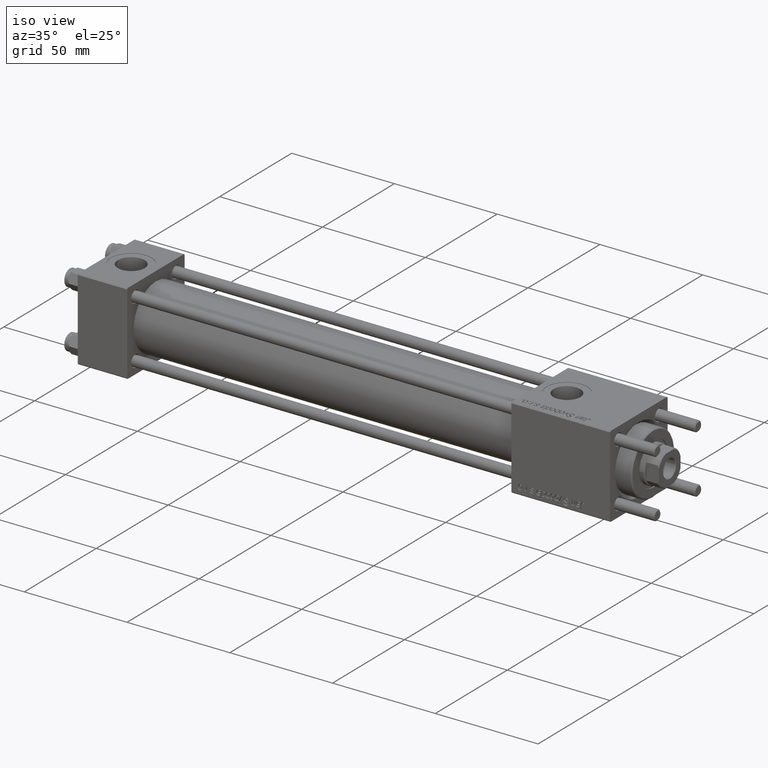
[diagram: clean part render]
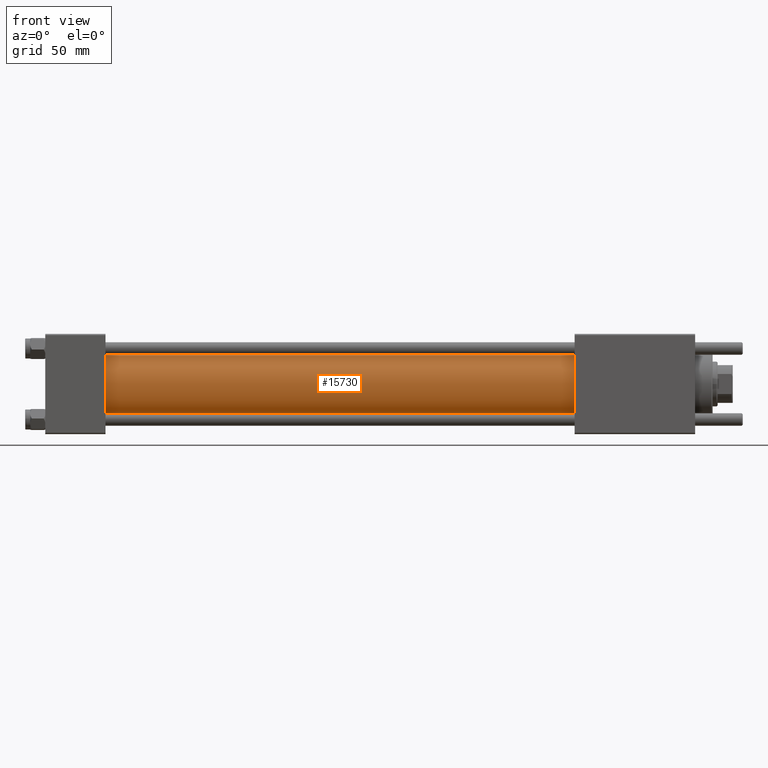
[diagram: tour spotlight — one face highlighted and labeled with its STEP entity id]
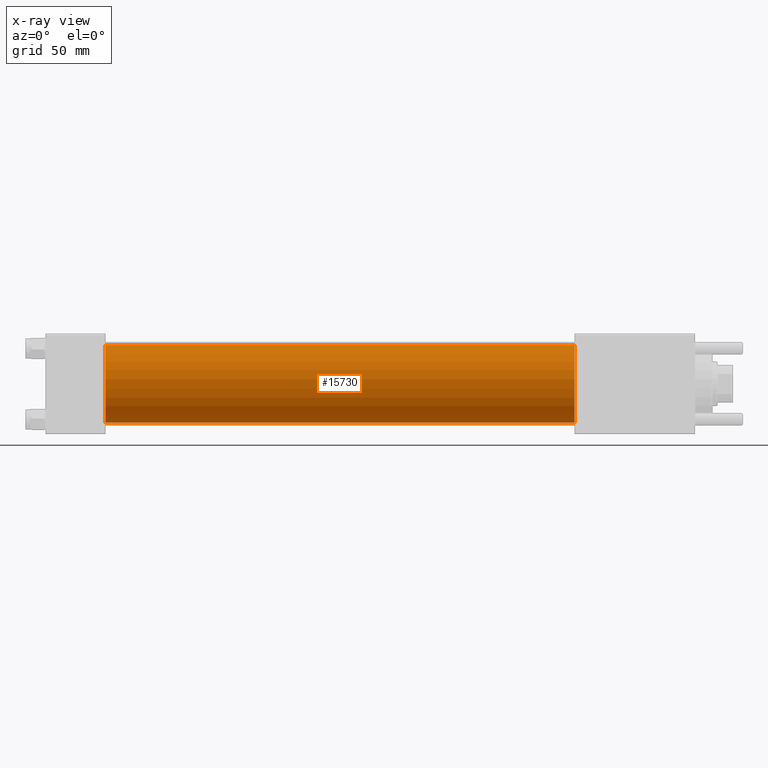
[diagram: x-ray of the same camera — body ghosted, this tour face saturated]
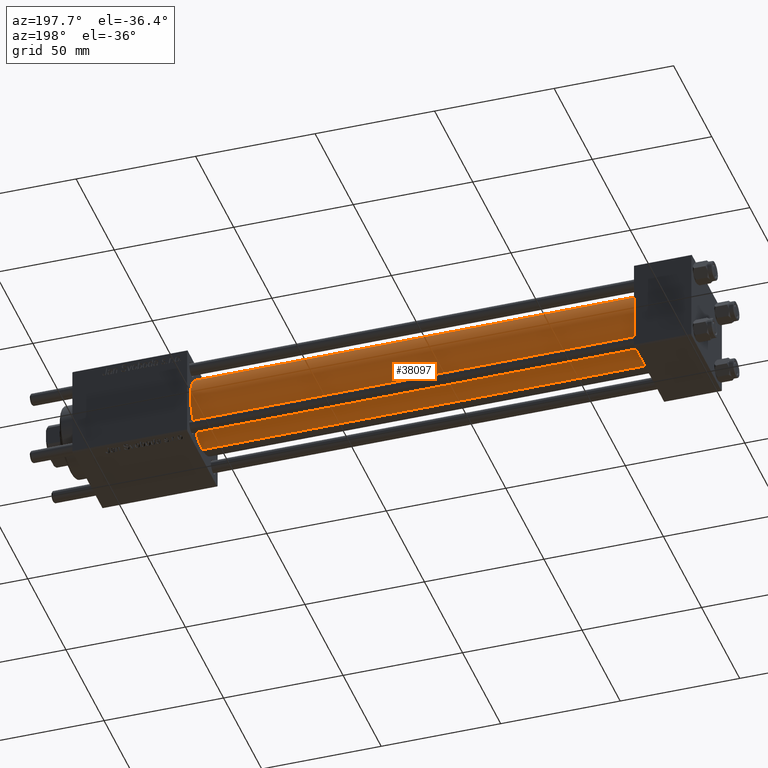
[diagram: tour spotlight — one face highlighted and labeled with its STEP entity id]
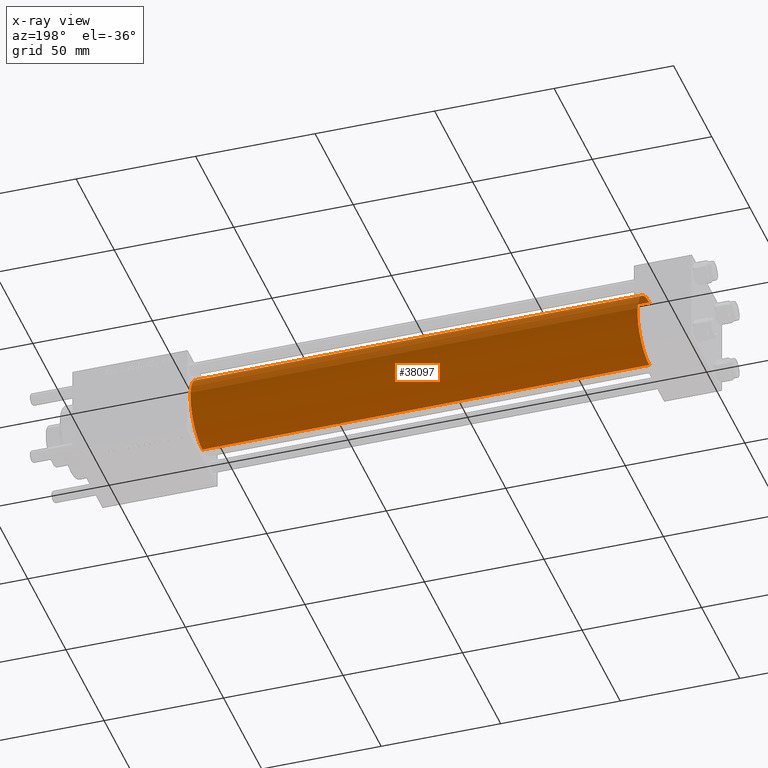
[diagram: x-ray of the same camera — body ghosted, this tour face saturated]
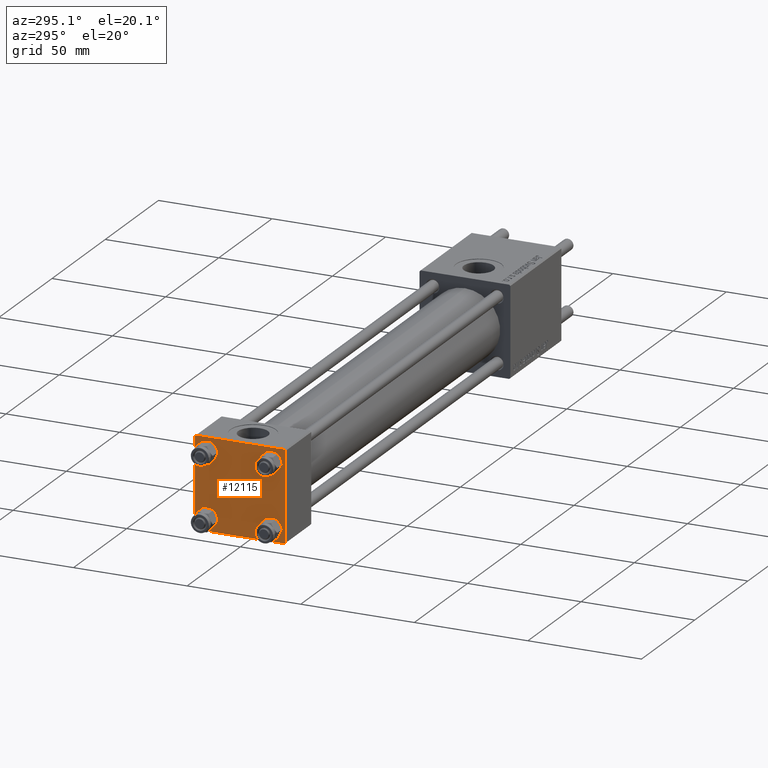
[diagram: tour spotlight — one face highlighted and labeled with its STEP entity id]
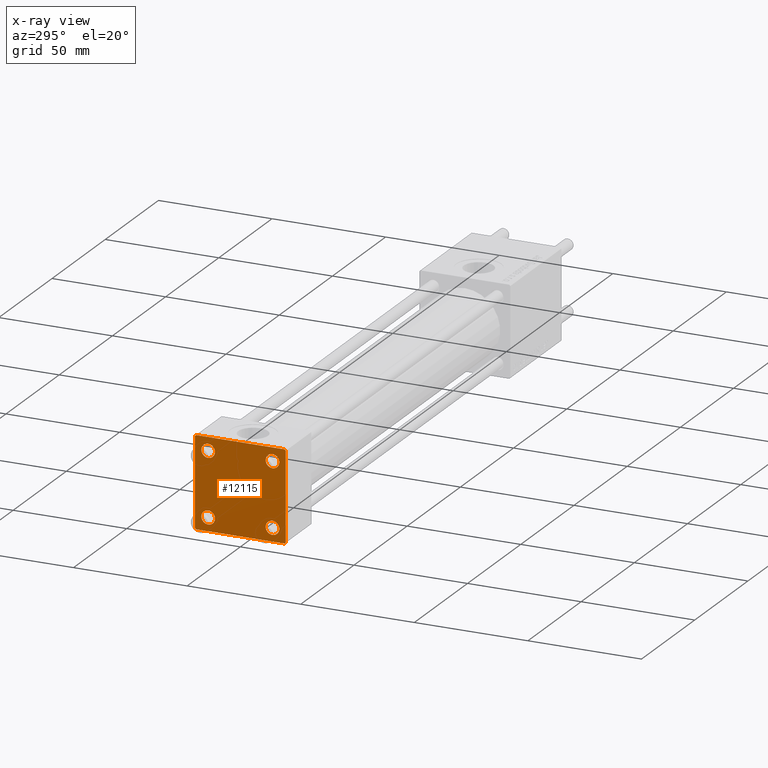
[diagram: x-ray of the same camera — body ghosted, this tour face saturated]
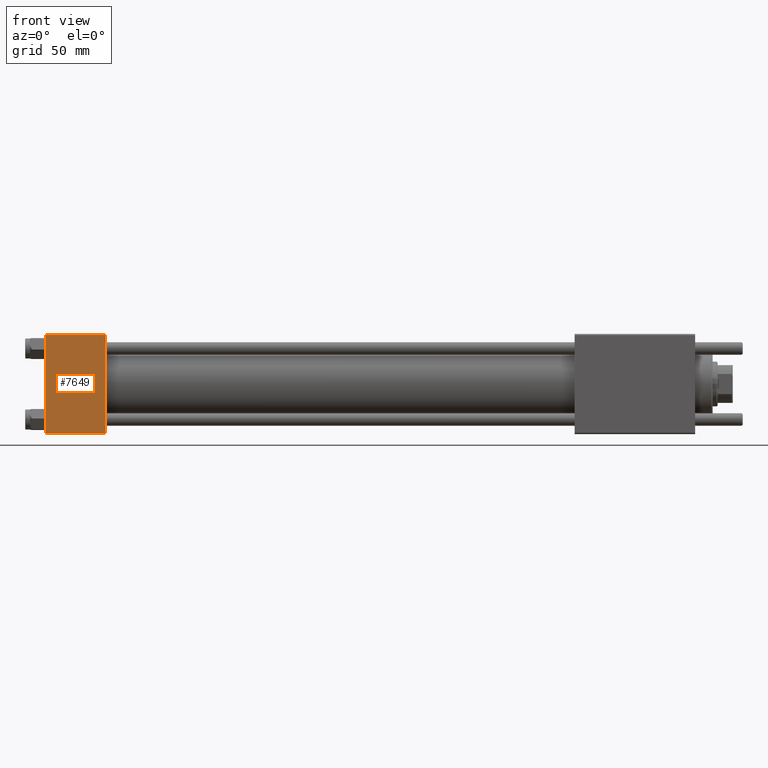
[diagram: tour spotlight — one face highlighted and labeled with its STEP entity id]
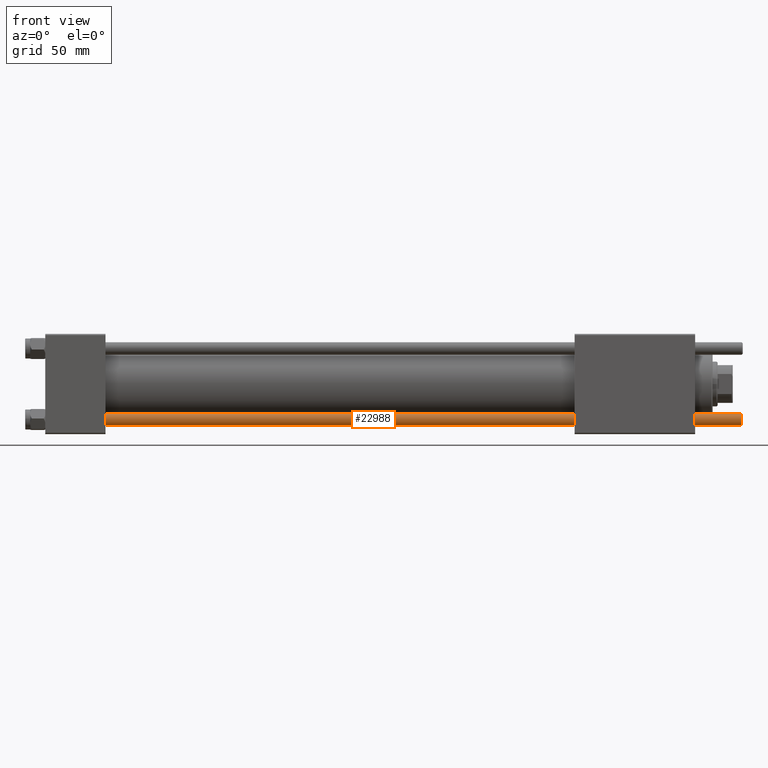
[diagram: tour spotlight — one face highlighted and labeled with its STEP entity id]
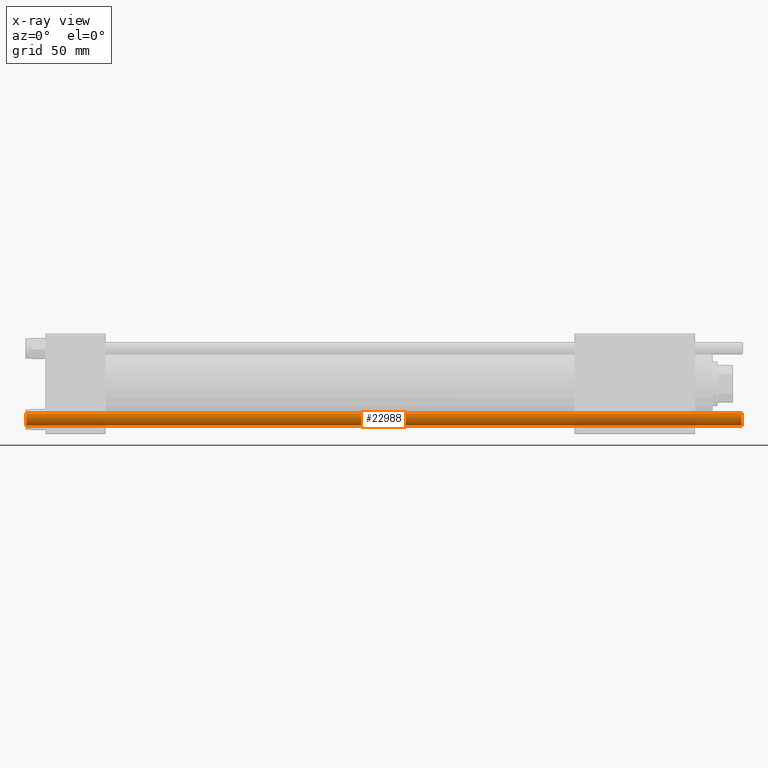
[diagram: x-ray of the same camera — body ghosted, this tour face saturated]
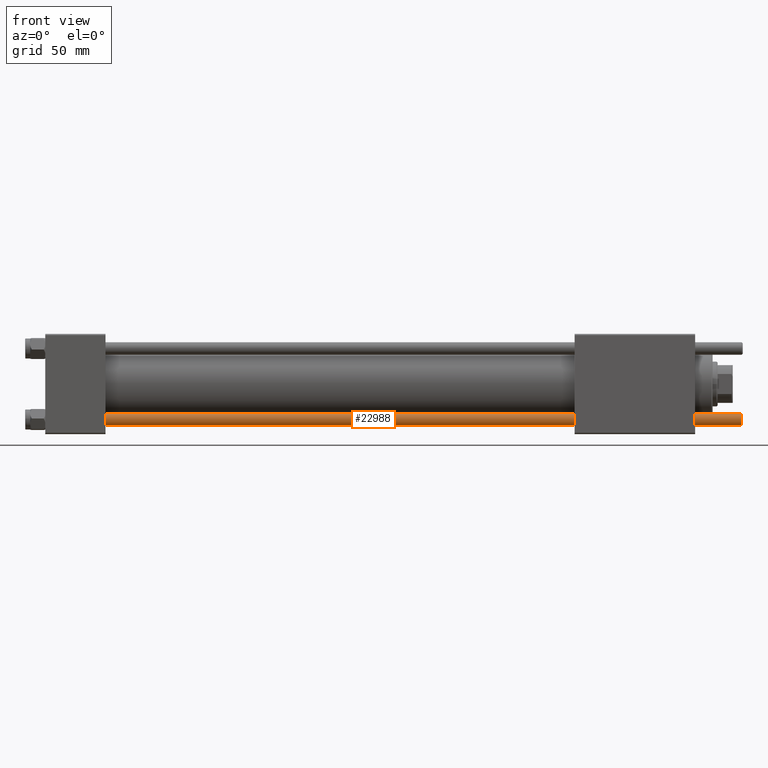
[diagram: tour spotlight — one face highlighted and labeled with its STEP entity id]
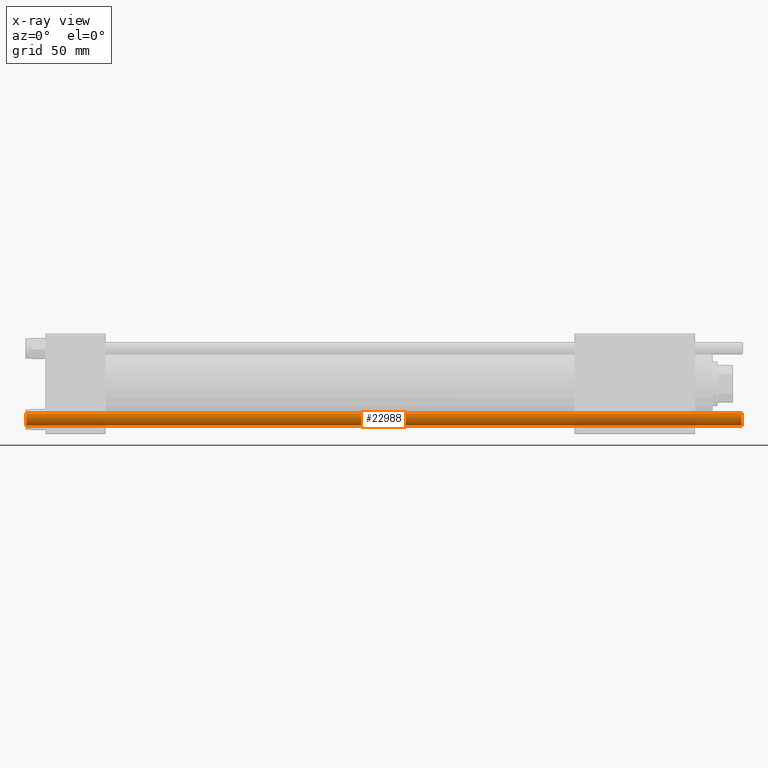
[diagram: x-ray of the same camera — body ghosted, this tour face saturated]
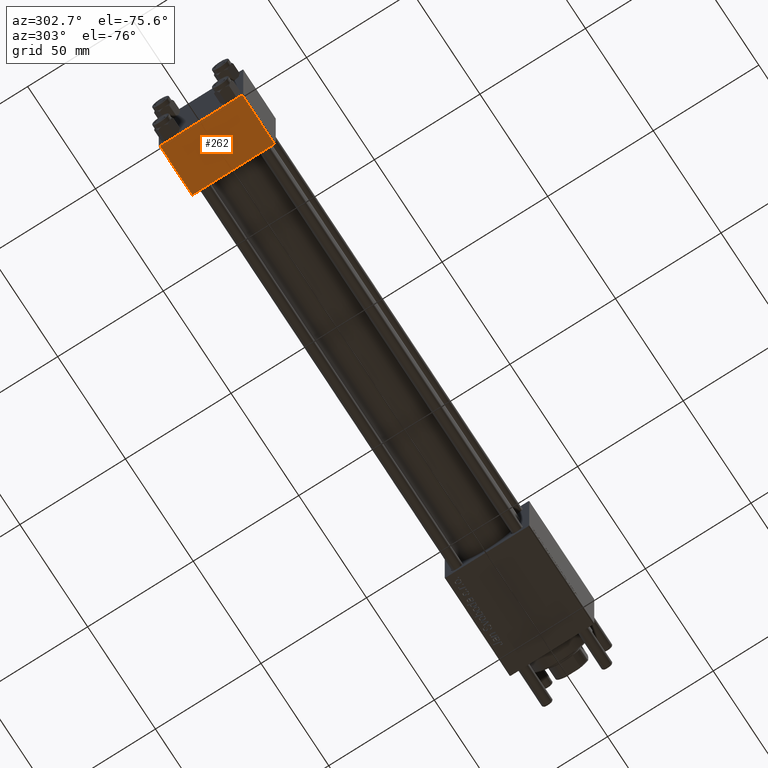
[diagram: tour spotlight — one face highlighted and labeled with its STEP entity id]
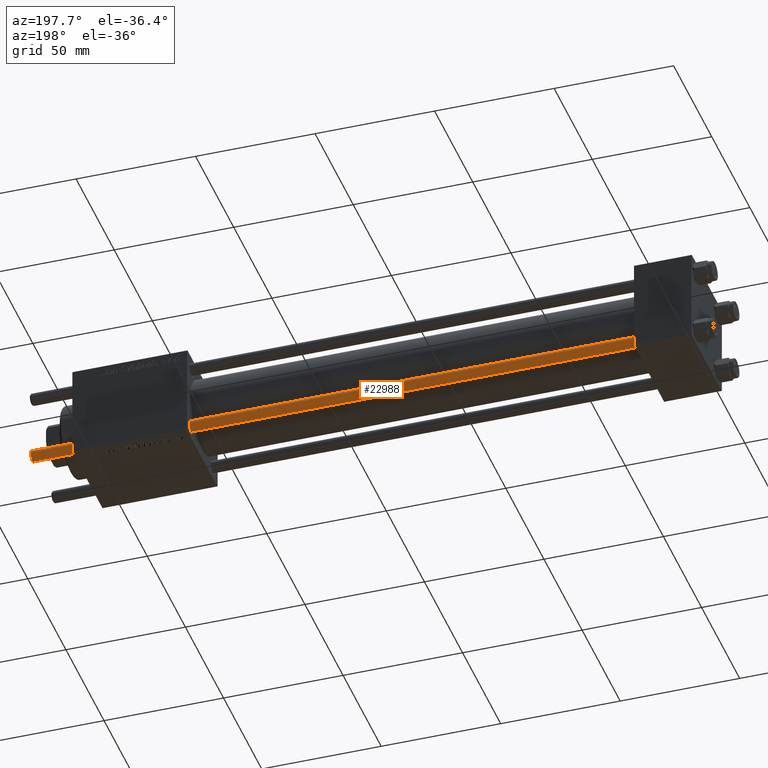
[diagram: tour spotlight — one face highlighted and labeled with its STEP entity id]
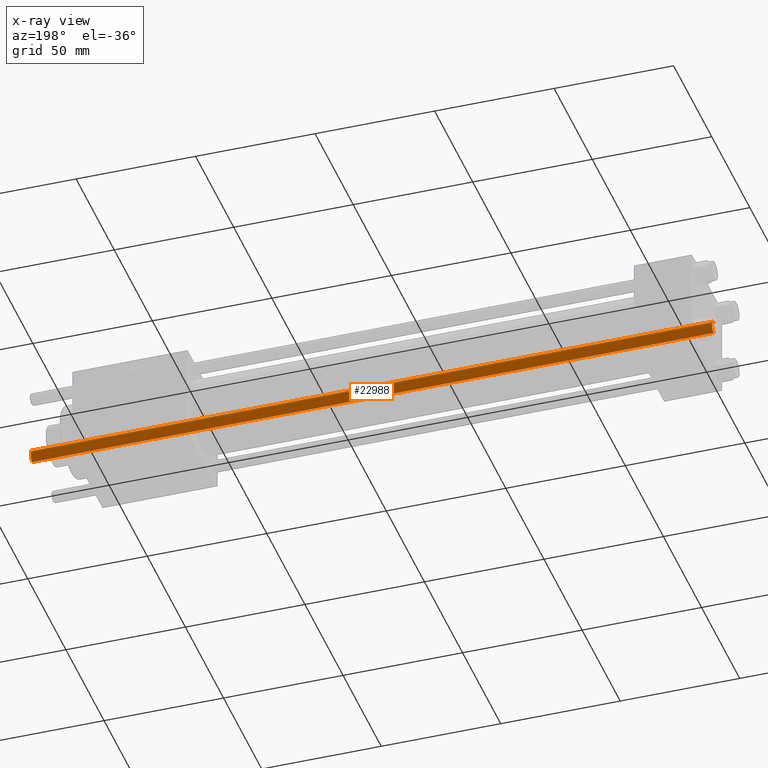
[diagram: x-ray of the same camera — body ghosted, this tour face saturated]
A machine part: a face-by-face anatomy tour. The part has 1152 B-rep faces; the first image is the clean iso view, then the 8 largest visible faces are spotlighted one at a time (largest first), each with its STEP entity span.

Face 1 — front view, entity #15730. An x-ray twin of the same camera follows (body ghosted, this face saturated) — the face is partly hidden behind the body. In plain terms, the highlighted cylindrical surface (partial cylindrical patch) has radius 15.5 mm, axis along (-1, -0, -0).
Definition (entity closure, byte-faithful):
#929 = VERTEX_POINT ( 'NONE', #11892 ) ;
#2259 = CARTESIAN_POINT ( 'NONE',  ( 23.99999999999999289, -2.602085213965210642E-15, 15.50000000000000000 ) ) ;
#4195 = DIRECTION ( 'NONE',  ( -1.000000000000000000, -0.000000000000000000, -0.000000000000000000 ) ) ;
#4428 = AXIS2_PLACEMENT_3D ( 'NONE', #46652, #47485, #42073 ) ;
#5756 = VERTEX_POINT ( 'NONE', #40532 ) ;
#5893 = EDGE_LOOP ( 'NONE', ( #44681, #21490, #43003, #22532 ) ) ;
#9255 = FACE_OUTER_BOUND ( 'NONE', #5893, .T. ) ;
#11892 = CARTESIAN_POINT ( 'NONE',  ( 211.0000000000000000, -7.038826752868131828E-16, -15.50000000000000000 ) ) ;
#13510 = CARTESIAN_POINT ( 'NONE',  ( 23.99999999999999289, -2.602085213965210642E-15, 0.000000000000000000 ) ) ;
#14259 = AXIS2_PLACEMENT_3D ( 'NONE', #13510, #53086, #40159 ) ;
#15199 = VECTOR ( 'NONE', #4195, 1000.000000000000000 ) ;
#15730 = ADVANCED_FACE ( 'NONE', ( #9255 ), #21871, .T. ) ;
#18177 = CIRCLE ( 'NONE', #4428, 15.50000000000000000 ) ;
#21490 = ORIENTED_EDGE ( 'NONE', *, *, #32623, .F. ) ;
#21871 = CYLINDRICAL_SURFACE ( 'NONE', #40047, 15.50000000000000000 ) ;
#22532 = ORIENTED_EDGE ( 'NONE', *, *, #56200, .T. ) ;
#24721 = VERTEX_POINT ( 'NONE', #2259 ) ;
#30849 = CARTESIAN_POINT ( 'NONE',  ( 211.0000000000000000, -7.038826752868131828E-16, -15.50000000000000000 ) ) ;
#31059 = LINE ( 'NONE', #43682, #46946 ) ;
#31911 = DIRECTION ( 'NONE',  ( -1.000000000000000000, -0.000000000000000000, -0.000000000000000000 ) ) ;
#32623 = EDGE_CURVE ( 'NONE', #37784, #929, #18177, .T. ) ;
#35053 = DIRECTION ( 'NONE',  ( 0.000000000000000000, 0.000000000000000000, 1.000000000000000000 ) ) ;
#37784 = VERTEX_POINT ( 'NONE', #44002 ) ;
#38869 = LINE ( 'NONE', #30849, #15199 ) ;
#40047 = AXIS2_PLACEMENT_3D ( 'NONE', #49104, #31911, #35053 ) ;
#40159 = DIRECTION ( 'NONE',  ( 0.000000000000000000, 0.000000000000000000, 1.000000000000000000 ) ) ;
#40532 = CARTESIAN_POINT ( 'NONE',  ( 23.99999999999999289, -7.038826752868131828E-16, -15.50000000000000000 ) ) ;
#42073 = DIRECTION ( 'NONE',  ( 0.000000000000000000, 0.000000000000000000, -1.000000000000000000 ) ) ;
#43003 = ORIENTED_EDGE ( 'NONE', *, *, #50710, .T. ) ;
#43682 = CARTESIAN_POINT ( 'NONE',  ( 211.0000000000000000, -2.602085213965210642E-15, 15.50000000000000000 ) ) ;
#44002 = CARTESIAN_POINT ( 'NONE',  ( 211.0000000000000000, -2.602085213965210642E-15, 15.50000000000000000 ) ) ;
#44681 = ORIENTED_EDGE ( 'NONE', *, *, #55918, .F. ) ;
#46652 = CARTESIAN_POINT ( 'NONE',  ( 211.0000000000000000, -2.602085213965210642E-15, 0.000000000000000000 ) ) ;
#46946 = VECTOR ( 'NONE', #53425, 1000.000000000000000 ) ;
#47485 = DIRECTION ( 'NONE',  ( 1.000000000000000000, 0.000000000000000000, 0.000000000000000000 ) ) ;
#49104 = CARTESIAN_POINT ( 'NONE',  ( 211.0000000000000000, -2.602085213965210642E-15, 0.000000000000000000 ) ) ;
#50710 = EDGE_CURVE ( 'NONE', #37784, #24721, #31059, .T. ) ;
#52733 = CIRCLE ( 'NONE', #14259, 15.50000000000000000 ) ;
#53086 = DIRECTION ( 'NONE',  ( 1.000000000000000000, 0.000000000000000000, 0.000000000000000000 ) ) ;
#53425 = DIRECTION ( 'NONE',  ( -1.000000000000000000, -0.000000000000000000, -0.000000000000000000 ) ) ;
#55918 = EDGE_CURVE ( 'NONE', #929, #5756, #38869, .T. ) ;
#56200 = EDGE_CURVE ( 'NONE', #24721, #5756, #52733, .T. ) ;

Face 2 — auxiliary view, entity #38097. An x-ray twin of the same camera follows (body ghosted, this face saturated) — the face is partly hidden behind the body. In plain terms, the highlighted cylindrical surface (partial cylindrical patch) has radius 15.5 mm, axis along (-1, -0, -0).
Definition (entity closure, byte-faithful):
#929 = VERTEX_POINT ( 'NONE', #11892 ) ;
#2259 = CARTESIAN_POINT ( 'NONE',  ( 23.99999999999999289, -2.602085213965210642E-15, 15.50000000000000000 ) ) ;
#2807 = AXIS2_PLACEMENT_3D ( 'NONE', #10017, #26934, #23193 ) ;
#3252 = EDGE_CURVE ( 'NONE', #929, #37784, #49898, .T. ) ;
#4195 = DIRECTION ( 'NONE',  ( -1.000000000000000000, -0.000000000000000000, -0.000000000000000000 ) ) ;
#5714 = CYLINDRICAL_SURFACE ( 'NONE', #2807, 15.50000000000000000 ) ;
#5756 = VERTEX_POINT ( 'NONE', #40532 ) ;
#10017 = CARTESIAN_POINT ( 'NONE',  ( 211.0000000000000000, -2.602085213965210642E-15, 0.000000000000000000 ) ) ;
#10200 = ORIENTED_EDGE ( 'NONE', *, *, #46926, .T. ) ;
#11668 = DIRECTION ( 'NONE',  ( 0.000000000000000000, 0.000000000000000000, -1.000000000000000000 ) ) ;
#11892 = CARTESIAN_POINT ( 'NONE',  ( 211.0000000000000000, -7.038826752868131828E-16, -15.50000000000000000 ) ) ;
#15199 = VECTOR ( 'NONE', #4195, 1000.000000000000000 ) ;
#16519 = ORIENTED_EDGE ( 'NONE', *, *, #55918, .T. ) ;
#16737 = CIRCLE ( 'NONE', #40549, 15.50000000000000000 ) ;
#19980 = DIRECTION ( 'NONE',  ( 1.000000000000000000, 0.000000000000000000, 0.000000000000000000 ) ) ;
#23193 = DIRECTION ( 'NONE',  ( 0.000000000000000000, 0.000000000000000000, 1.000000000000000000 ) ) ;
#24721 = VERTEX_POINT ( 'NONE', #2259 ) ;
#26934 = DIRECTION ( 'NONE',  ( -1.000000000000000000, -0.000000000000000000, -0.000000000000000000 ) ) ;
#30849 = CARTESIAN_POINT ( 'NONE',  ( 211.0000000000000000, -7.038826752868131828E-16, -15.50000000000000000 ) ) ;
#31059 = LINE ( 'NONE', #43682, #46946 ) ;
#35260 = AXIS2_PLACEMENT_3D ( 'NONE', #46649, #19980, #11668 ) ;
#37784 = VERTEX_POINT ( 'NONE', #44002 ) ;
#38097 = ADVANCED_FACE ( 'NONE', ( #53051 ), #5714, .T. ) ;
#38675 = DIRECTION ( 'NONE',  ( 0.000000000000000000, 0.000000000000000000, 1.000000000000000000 ) ) ;
#38869 = LINE ( 'NONE', #30849, #15199 ) ;
#40532 = CARTESIAN_POINT ( 'NONE',  ( 23.99999999999999289, -7.038826752868131828E-16, -15.50000000000000000 ) ) ;
#40549 = AXIS2_PLACEMENT_3D ( 'NONE', #47573, #55912, #38675 ) ;
#43682 = CARTESIAN_POINT ( 'NONE',  ( 211.0000000000000000, -2.602085213965210642E-15, 15.50000000000000000 ) ) ;
#44002 = CARTESIAN_POINT ( 'NONE',  ( 211.0000000000000000, -2.602085213965210642E-15, 15.50000000000000000 ) ) ;
#46205 = ORIENTED_EDGE ( 'NONE', *, *, #50710, .F. ) ;
#46649 = CARTESIAN_POINT ( 'NONE',  ( 211.0000000000000000, -2.602085213965210642E-15, 0.000000000000000000 ) ) ;
#46926 = EDGE_CURVE ( 'NONE', #5756, #24721, #16737, .T. ) ;
#46946 = VECTOR ( 'NONE', #53425, 1000.000000000000000 ) ;
#47573 = CARTESIAN_POINT ( 'NONE',  ( 23.99999999999999289, -2.602085213965210642E-15, 0.000000000000000000 ) ) ;
#49898 = CIRCLE ( 'NONE', #35260, 15.50000000000000000 ) ;
#50710 = EDGE_CURVE ( 'NONE', #37784, #24721, #31059, .T. ) ;
#53051 = FACE_OUTER_BOUND ( 'NONE', #55780, .T. ) ;
#53425 = DIRECTION ( 'NONE',  ( -1.000000000000000000, -0.000000000000000000, -0.000000000000000000 ) ) ;
#55780 = EDGE_LOOP ( 'NONE', ( #56195, #16519, #10200, #46205 ) ) ;
#55912 = DIRECTION ( 'NONE',  ( 1.000000000000000000, 0.000000000000000000, 0.000000000000000000 ) ) ;
#55918 = EDGE_CURVE ( 'NONE', #929, #5756, #38869, .T. ) ;
#56195 = ORIENTED_EDGE ( 'NONE', *, *, #3252, .F. ) ;

Face 3 — auxiliary view, entity #12115. An x-ray twin of the same camera follows (body ghosted, this face saturated) — the face is partly hidden behind the body. In plain terms, the highlighted planar face has unit normal (-1, 0, 0).
Definition (entity closure, byte-faithful):
#513 = EDGE_CURVE ( 'NONE', #54359, #4200, #21454, .T. ) ;
#733 = LINE ( 'NONE', #18205, #3441 ) ;
#1124 = VERTEX_POINT ( 'NONE', #45098 ) ;
#1275 = CARTESIAN_POINT ( 'NONE',  ( 0.000000000000000000, -20.00000000000000355, 19.99999999999998934 ) ) ;
#1299 = DIRECTION ( 'NONE',  ( -0.000000000000000000, 0.000000000000000000, 1.000000000000000000 ) ) ;
#2602 = CARTESIAN_POINT ( 'NONE',  ( 0.000000000000000000, 20.00000000000000000, -20.00000000000000711 ) ) ;
#3441 = VECTOR ( 'NONE', #53195, 1000.000000000000114 ) ;
#3868 = DIRECTION ( 'NONE',  ( 1.000000000000000000, 0.000000000000000000, 0.000000000000000000 ) ) ;
#4198 = EDGE_CURVE ( 'NONE', #12110, #41192, #55349, .T. ) ;
#4200 = VERTEX_POINT ( 'NONE', #6879 ) ;
#4353 = DIRECTION ( 'NONE',  ( 1.000000000000000000, 0.000000000000000000, 0.000000000000000000 ) ) ;
#4933 = CARTESIAN_POINT ( 'NONE',  ( 0.000000000000000000, -14.14999999999999503, 11.15000000000002345 ) ) ;
#5251 = VECTOR ( 'NONE', #52237, 1000.000000000000000 ) ;
#5551 = VERTEX_POINT ( 'NONE', #18802 ) ;
#5590 = PLANE ( 'NONE',  #53695 ) ;
#6155 = EDGE_CURVE ( 'NONE', #1124, #35938, #32730, .T. ) ;
#6174 = ORIENTED_EDGE ( 'NONE', *, *, #44249, .T. ) ;
#6184 = VECTOR ( 'NONE', #10447, 1000.000000000000000 ) ;
#6701 = DIRECTION ( 'NONE',  ( 0.000000000000000000, 8.673617379884036705E-17, -1.000000000000000000 ) ) ;
#6812 = ORIENTED_EDGE ( 'NONE', *, *, #14643, .T. ) ;
#6879 = CARTESIAN_POINT ( 'NONE',  ( 0.000000000000000000, 14.14999999999999858, -17.14999999999998437 ) ) ;
#7939 = VERTEX_POINT ( 'NONE', #56437 ) ;
#8325 = CARTESIAN_POINT ( 'NONE',  ( 0.000000000000000000, 20.00000000000000000, 19.49999999999999289 ) ) ;
#8509 = CARTESIAN_POINT ( 'NONE',  ( 0.000000000000000000, -14.14999999999999503, -11.15000000000000036 ) ) ;
#8545 = VECTOR ( 'NONE', #46689, 1000.000000000000000 ) ;
#8862 = CIRCLE ( 'NONE', #30846, 2.999999999999983569 ) ;
#9492 = DIRECTION ( 'NONE',  ( 0.000000000000000000, 0.000000000000000000, 1.000000000000000000 ) ) ;
#9972 = CIRCLE ( 'NONE', #54856, 2.999999999999983569 ) ;
#10259 = EDGE_CURVE ( 'NONE', #20896, #48970, #28492, .T. ) ;
#10350 = EDGE_CURVE ( 'NONE', #53234, #27763, #52839, .T. ) ;
#10447 = DIRECTION ( 'NONE',  ( -0.000000000000000000, -0.7071067811865524577, -0.7071067811865426878 ) ) ;
#10511 = CARTESIAN_POINT ( 'NONE',  ( 0.000000000000000000, 14.14999999999999858, 17.14999999999998437 ) ) ;
#10541 = ORIENTED_EDGE ( 'NONE', *, *, #51762, .T. ) ;
#10949 = VERTEX_POINT ( 'NONE', #10511 ) ;
#11113 = EDGE_CURVE ( 'NONE', #20896, #51626, #733, .T. ) ;
#11182 = EDGE_CURVE ( 'NONE', #5551, #12110, #19051, .T. ) ;
#11361 = ORIENTED_EDGE ( 'NONE', *, *, #22235, .T. ) ;
#11576 = CARTESIAN_POINT ( 'NONE',  ( 0.000000000000000000, 14.14999999999999858, -11.15000000000001812 ) ) ;
#12110 = VERTEX_POINT ( 'NONE', #30834 ) ;
#12115 = ADVANCED_FACE ( 'NONE', ( #14192, #48329, #22494, #39991, #44869 ), #5590, .T. ) ;
#12148 = AXIS2_PLACEMENT_3D ( 'NONE', #21060, #3868, #46889 ) ;
#13565 = DIRECTION ( 'NONE',  ( 1.000000000000000000, 0.000000000000000000, 0.000000000000000000 ) ) ;
#14192 = FACE_BOUND ( 'NONE', #14463, .T. ) ;
#14463 = EDGE_LOOP ( 'NONE', ( #28974, #41920 ) ) ;
#14643 = EDGE_CURVE ( 'NONE', #4200, #54359, #8862, .T. ) ;
#15227 = EDGE_LOOP ( 'NONE', ( #44329, #6812 ) ) ;
#15928 = CARTESIAN_POINT ( 'NONE',  ( 0.000000000000000000, -19.49999999999999289, 19.99999999999998934 ) ) ;
#16080 = VECTOR ( 'NONE', #36743, 999.9999999999998863 ) ;
#16206 = DIRECTION ( 'NONE',  ( 1.000000000000000000, 0.000000000000000000, 0.000000000000000000 ) ) ;
#16335 = LINE ( 'NONE', #16885, #23623 ) ;
#16374 = CARTESIAN_POINT ( 'NONE',  ( 0.000000000000000000, -20.00000000000000000, -19.49999999999999645 ) ) ;
#16885 = CARTESIAN_POINT ( 'NONE',  ( 0.000000000000000000, 20.00000000000000000, 20.00000000000000000 ) ) ;
#17206 = CARTESIAN_POINT ( 'NONE',  ( 0.000000000000000000, -14.14999999999999503, 14.15000000000000391 ) ) ;
#17321 = CARTESIAN_POINT ( 'NONE',  ( 0.000000000000000000, -19.50000000000000711, -20.00000000000000000 ) ) ;
#17569 = EDGE_CURVE ( 'NONE', #7939, #46298, #24541, .T. ) ;
#18205 = CARTESIAN_POINT ( 'NONE',  ( -0.000000000000000000, -19.74999999999992539, 19.75000000000006395 ) ) ;
#18802 = CARTESIAN_POINT ( 'NONE',  ( 0.000000000000000000, 20.00000000000000000, -19.50000000000002132 ) ) ;
#19051 = LINE ( 'NONE', #36541, #6184 ) ;
#19654 = EDGE_CURVE ( 'NONE', #46298, #7939, #9972, .T. ) ;
#19913 = ORIENTED_EDGE ( 'NONE', *, *, #4198, .T. ) ;
#20407 = CARTESIAN_POINT ( 'NONE',  ( 0.000000000000000000, 14.14999999999999858, -14.15000000000000036 ) ) ;
#20572 = CARTESIAN_POINT ( 'NONE',  ( 0.000000000000000000, 14.14999999999999858, 11.15000000000001990 ) ) ;
#20896 = VERTEX_POINT ( 'NONE', #45209 ) ;
#20925 = ORIENTED_EDGE ( 'NONE', *, *, #48557, .T. ) ;
#21060 = CARTESIAN_POINT ( 'NONE',  ( 0.000000000000000000, 14.14999999999999858, 14.15000000000000036 ) ) ;
#21454 = CIRCLE ( 'NONE', #23273, 2.999999999999983569 ) ;
#21475 = EDGE_LOOP ( 'NONE', ( #53658, #31785, #19913, #20925, #32636, #36439, #56208, #23662 ) ) ;
#22235 = EDGE_CURVE ( 'NONE', #47868, #10949, #51903, .T. ) ;
#22494 = FACE_BOUND ( 'NONE', #15227, .T. ) ;
#23068 = CARTESIAN_POINT ( 'NONE',  ( 0.000000000000000000, 0.000000000000000000, 0.000000000000000000 ) ) ;
#23273 = AXIS2_PLACEMENT_3D ( 'NONE', #20407, #41929, #55402 ) ;
#23353 = EDGE_CURVE ( 'NONE', #35938, #5551, #43347, .T. ) ;
#23623 = VECTOR ( 'NONE', #55343, 1000.000000000000000 ) ;
#23662 = ORIENTED_EDGE ( 'NONE', *, *, #6155, .T. ) ;
#24541 = CIRCLE ( 'NONE', #50179, 2.999999999999983569 ) ;
#26546 = EDGE_CURVE ( 'NONE', #1124, #51626, #16335, .T. ) ;
#26740 = DIRECTION ( 'NONE',  ( 0.000000000000000000, 0.000000000000000000, 1.000000000000000000 ) ) ;
#27763 = VERTEX_POINT ( 'NONE', #8509 ) ;
#27812 = DIRECTION ( 'NONE',  ( 0.000000000000000000, 0.000000000000000000, 1.000000000000000000 ) ) ;
#27859 = CARTESIAN_POINT ( 'NONE',  ( 0.000000000000000000, -14.14999999999999503, -17.15000000000000924 ) ) ;
#28492 = LINE ( 'NONE', #1275, #50104 ) ;
#28974 = ORIENTED_EDGE ( 'NONE', *, *, #17569, .T. ) ;
#29243 = DIRECTION ( 'NONE',  ( 0.000000000000000000, -1.000000000000000000, 1.734723475976807094E-16 ) ) ;
#29896 = DIRECTION ( 'NONE',  ( 1.000000000000000000, 0.000000000000000000, 0.000000000000000000 ) ) ;
#30161 = CARTESIAN_POINT ( 'NONE',  ( 0.000000000000000000, 20.00000000000000000, 20.00000000000000000 ) ) ;
#30834 = CARTESIAN_POINT ( 'NONE',  ( 0.000000000000000000, 19.50000000000000711, -20.00000000000000711 ) ) ;
#30846 = AXIS2_PLACEMENT_3D ( 'NONE', #44735, #41570, #27812 ) ;
#31785 = ORIENTED_EDGE ( 'NONE', *, *, #11182, .T. ) ;
#32636 = ORIENTED_EDGE ( 'NONE', *, *, #10259, .F. ) ;
#32730 = LINE ( 'NONE', #53967, #16080 ) ;
#33785 = LINE ( 'NONE', #45836, #8545 ) ;
#34467 = CARTESIAN_POINT ( 'NONE',  ( 0.000000000000000000, -14.14999999999999503, -14.15000000000000391 ) ) ;
#35886 = CIRCLE ( 'NONE', #48701, 3.000000000000004441 ) ;
#35938 = VERTEX_POINT ( 'NONE', #8325 ) ;
#36439 = ORIENTED_EDGE ( 'NONE', *, *, #11113, .T. ) ;
#36541 = CARTESIAN_POINT ( 'NONE',  ( -0.000000000000000000, 19.74999999999986855, -19.75000000000014211 ) ) ;
#36743 = DIRECTION ( 'NONE',  ( 0.000000000000000000, 0.7071067811865425767, -0.7071067811865525687 ) ) ;
#37113 = VECTOR ( 'NONE', #29243, 1000.000000000000000 ) ;
#39314 = CARTESIAN_POINT ( 'NONE',  ( 0.000000000000000000, -14.14999999999999503, -14.15000000000000391 ) ) ;
#39991 = FACE_BOUND ( 'NONE', #44879, .T. ) ;
#40127 = DIRECTION ( 'NONE',  ( 0.000000000000000000, 0.000000000000000000, 1.000000000000000000 ) ) ;
#40563 = DIRECTION ( 'NONE',  ( -1.000000000000000000, 0.000000000000000000, -0.000000000000000000 ) ) ;
#41192 = VERTEX_POINT ( 'NONE', #17321 ) ;
#41570 = DIRECTION ( 'NONE',  ( 1.000000000000000000, 0.000000000000000000, 0.000000000000000000 ) ) ;
#41920 = ORIENTED_EDGE ( 'NONE', *, *, #19654, .T. ) ;
#41929 = DIRECTION ( 'NONE',  ( 1.000000000000000000, 0.000000000000000000, 0.000000000000000000 ) ) ;
#41977 = DIRECTION ( 'NONE',  ( 0.000000000000000000, 0.000000000000000000, 1.000000000000000000 ) ) ;
#43347 = LINE ( 'NONE', #30161, #5251 ) ;
#44249 = EDGE_CURVE ( 'NONE', #27763, #53234, #35886, .T. ) ;
#44329 = ORIENTED_EDGE ( 'NONE', *, *, #513, .T. ) ;
#44735 = CARTESIAN_POINT ( 'NONE',  ( 0.000000000000000000, 14.14999999999999858, -14.15000000000000036 ) ) ;
#44869 = FACE_OUTER_BOUND ( 'NONE', #21475, .T. ) ;
#44879 = EDGE_LOOP ( 'NONE', ( #10541, #11361 ) ) ;
#45098 = CARTESIAN_POINT ( 'NONE',  ( 0.000000000000000000, 19.50000000000000000, 20.00000000000000000 ) ) ;
#45209 = CARTESIAN_POINT ( 'NONE',  ( 0.000000000000000000, -20.00000000000000355, 19.49999999999998224 ) ) ;
#45836 = CARTESIAN_POINT ( 'NONE',  ( 0.000000000000000000, -19.75000000000020961, -19.74999999999979394 ) ) ;
#46298 = VERTEX_POINT ( 'NONE', #4933 ) ;
#46689 = DIRECTION ( 'NONE',  ( 0.000000000000000000, -0.7071067811865401342, 0.7071067811865549002 ) ) ;
#46889 = DIRECTION ( 'NONE',  ( 0.000000000000000000, 0.000000000000000000, 1.000000000000000000 ) ) ;
#47157 = DIRECTION ( 'NONE',  ( 0.000000000000000000, 0.000000000000000000, 1.000000000000000000 ) ) ;
#47868 = VERTEX_POINT ( 'NONE', #20572 ) ;
#48240 = AXIS2_PLACEMENT_3D ( 'NONE', #34467, #29896, #41977 ) ;
#48329 = FACE_BOUND ( 'NONE', #49652, .T. ) ;
#48557 = EDGE_CURVE ( 'NONE', #41192, #48970, #33785, .T. ) ;
#48701 = AXIS2_PLACEMENT_3D ( 'NONE', #39314, #4353, #9492 ) ;
#48970 = VERTEX_POINT ( 'NONE', #16374 ) ;
#49652 = EDGE_LOOP ( 'NONE', ( #6174, #52389 ) ) ;
#49697 = CIRCLE ( 'NONE', #12148, 2.999999999999983569 ) ;
#50104 = VECTOR ( 'NONE', #6701, 1000.000000000000000 ) ;
#50179 = AXIS2_PLACEMENT_3D ( 'NONE', #55495, #16206, #47157 ) ;
#50978 = AXIS2_PLACEMENT_3D ( 'NONE', #56582, #13565, #26740 ) ;
#51626 = VERTEX_POINT ( 'NONE', #15928 ) ;
#51762 = EDGE_CURVE ( 'NONE', #10949, #47868, #49697, .T. ) ;
#51903 = CIRCLE ( 'NONE', #50978, 2.999999999999983569 ) ;
#52193 = DIRECTION ( 'NONE',  ( 1.000000000000000000, 0.000000000000000000, 0.000000000000000000 ) ) ;
#52237 = DIRECTION ( 'NONE',  ( 0.000000000000000000, 0.000000000000000000, -1.000000000000000000 ) ) ;
#52389 = ORIENTED_EDGE ( 'NONE', *, *, #10350, .T. ) ;
#52839 = CIRCLE ( 'NONE', #48240, 3.000000000000004441 ) ;
#53195 = DIRECTION ( 'NONE',  ( -0.000000000000000000, 0.7071067811865500152, 0.7071067811865451302 ) ) ;
#53234 = VERTEX_POINT ( 'NONE', #27859 ) ;
#53658 = ORIENTED_EDGE ( 'NONE', *, *, #23353, .T. ) ;
#53695 = AXIS2_PLACEMENT_3D ( 'NONE', #23068, #40563, #1299 ) ;
#53967 = CARTESIAN_POINT ( 'NONE',  ( -0.000000000000000000, 19.75000000000013500, 19.74999999999986144 ) ) ;
#54359 = VERTEX_POINT ( 'NONE', #11576 ) ;
#54856 = AXIS2_PLACEMENT_3D ( 'NONE', #17206, #52193, #40127 ) ;
#55343 = DIRECTION ( 'NONE',  ( 0.000000000000000000, -1.000000000000000000, -2.602085213965210149E-16 ) ) ;
#55349 = LINE ( 'NONE', #2602, #37113 ) ;
#55402 = DIRECTION ( 'NONE',  ( 0.000000000000000000, 0.000000000000000000, 1.000000000000000000 ) ) ;
#55495 = CARTESIAN_POINT ( 'NONE',  ( 0.000000000000000000, -14.14999999999999503, 14.15000000000000391 ) ) ;
#56208 = ORIENTED_EDGE ( 'NONE', *, *, #26546, .F. ) ;
#56437 = CARTESIAN_POINT ( 'NONE',  ( 0.000000000000000000, -14.14999999999999503, 17.14999999999998792 ) ) ;
#56582 = CARTESIAN_POINT ( 'NONE',  ( 0.000000000000000000, 14.14999999999999858, 14.15000000000000036 ) ) ;

Face 4 — front view, entity #7649. In plain terms, the highlighted planar face has unit normal (0, 1, 0).
Definition (entity closure, byte-faithful):
#371 = EDGE_LOOP ( 'NONE', ( #12781, #20534, #48774, #48639 ) ) ;
#1275 = CARTESIAN_POINT ( 'NONE',  ( 0.000000000000000000, -20.00000000000000355, 19.99999999999998934 ) ) ;
#3191 = DIRECTION ( 'NONE',  ( -1.000000000000000000, 0.000000000000000000, 0.000000000000000000 ) ) ;
#5301 = FACE_OUTER_BOUND ( 'NONE', #371, .T. ) ;
#6701 = DIRECTION ( 'NONE',  ( 0.000000000000000000, 8.673617379884036705E-17, -1.000000000000000000 ) ) ;
#7649 = ADVANCED_FACE ( 'NONE', ( #5301 ), #50022, .F. ) ;
#8576 = EDGE_CURVE ( 'NONE', #48970, #50629, #19914, .T. ) ;
#10259 = EDGE_CURVE ( 'NONE', #20896, #48970, #28492, .T. ) ;
#10453 = CARTESIAN_POINT ( 'NONE',  ( 24.00000000000000000, -20.00000000000000355, 19.99999999999998934 ) ) ;
#10733 = DIRECTION ( 'NONE',  ( -0.000000000000000000, 1.000000000000000000, 8.673617379884036705E-17 ) ) ;
#12781 = ORIENTED_EDGE ( 'NONE', *, *, #10259, .T. ) ;
#12798 = EDGE_CURVE ( 'NONE', #54924, #20896, #41617, .T. ) ;
#16374 = CARTESIAN_POINT ( 'NONE',  ( 0.000000000000000000, -20.00000000000000000, -19.49999999999999645 ) ) ;
#19914 = LINE ( 'NONE', #28794, #30803 ) ;
#20534 = ORIENTED_EDGE ( 'NONE', *, *, #8576, .T. ) ;
#20896 = VERTEX_POINT ( 'NONE', #45209 ) ;
#23647 = CARTESIAN_POINT ( 'NONE',  ( 24.00000000000000000, -20.00000000000000355, 19.49999999999998224 ) ) ;
#24380 = AXIS2_PLACEMENT_3D ( 'NONE', #10453, #10733, #40277 ) ;
#28492 = LINE ( 'NONE', #1275, #50104 ) ;
#28794 = CARTESIAN_POINT ( 'NONE',  ( 24.00000000000000000, -20.00000000000000000, -19.49999999999999645 ) ) ;
#30803 = VECTOR ( 'NONE', #51442, 1000.000000000000000 ) ;
#32474 = LINE ( 'NONE', #50524, #38623 ) ;
#33859 = CARTESIAN_POINT ( 'NONE',  ( 24.00000000000000000, -20.00000000000000355, 19.49999999999998224 ) ) ;
#36770 = DIRECTION ( 'NONE',  ( 0.000000000000000000, 8.673617379884036705E-17, -1.000000000000000000 ) ) ;
#38623 = VECTOR ( 'NONE', #36770, 1000.000000000000000 ) ;
#40277 = DIRECTION ( 'NONE',  ( 0.000000000000000000, -8.673617379884036705E-17, 1.000000000000000000 ) ) ;
#41617 = LINE ( 'NONE', #33859, #45460 ) ;
#43858 = EDGE_CURVE ( 'NONE', #54924, #50629, #32474, .T. ) ;
#45209 = CARTESIAN_POINT ( 'NONE',  ( 0.000000000000000000, -20.00000000000000355, 19.49999999999998224 ) ) ;
#45460 = VECTOR ( 'NONE', #3191, 1000.000000000000000 ) ;
#48639 = ORIENTED_EDGE ( 'NONE', *, *, #12798, .T. ) ;
#48774 = ORIENTED_EDGE ( 'NONE', *, *, #43858, .F. ) ;
#48970 = VERTEX_POINT ( 'NONE', #16374 ) ;
#50022 = PLANE ( 'NONE',  #24380 ) ;
#50104 = VECTOR ( 'NONE', #6701, 1000.000000000000000 ) ;
#50524 = CARTESIAN_POINT ( 'NONE',  ( 24.00000000000000000, -20.00000000000000355, 19.99999999999998934 ) ) ;
#50629 = VERTEX_POINT ( 'NONE', #55474 ) ;
#51442 = DIRECTION ( 'NONE',  ( 1.000000000000000000, 0.000000000000000000, 0.000000000000000000 ) ) ;
#54924 = VERTEX_POINT ( 'NONE', #23647 ) ;
#55474 = CARTESIAN_POINT ( 'NONE',  ( 24.00000000000000000, -20.00000000000000000, -19.49999999999999645 ) ) ;

Face 5 — front view, entity #22988. An x-ray twin of the same camera follows (body ghosted, this face saturated) — the face is partly hidden behind the body. In plain terms, the highlighted cylindrical surface (edge-blend (fillet) strip) has radius 2.5 mm, axis along (-1, 0, -0).
Definition (entity closure, byte-faithful):
#1680 = ORIENTED_EDGE ( 'NONE', *, *, #30348, .T. ) ;
#3096 = EDGE_LOOP ( 'NONE', ( #1680, #35119, #34310, #26840 ) ) ;
#3310 = VERTEX_POINT ( 'NONE', #13347 ) ;
#4207 = CARTESIAN_POINT ( 'NONE',  ( 0.000000000000000000, 0.000000000000000000, 285.4999999999999432 ) ) ;
#4304 = DIRECTION ( 'NONE',  ( -0.000000000000000000, -0.000000000000000000, -1.000000000000000000 ) ) ;
#7945 = DIRECTION ( 'NONE',  ( 1.000000000000000000, 0.000000000000000000, 0.000000000000000000 ) ) ;
#11611 = CYLINDRICAL_SURFACE ( 'NONE', #47314, 2.500000000000000000 ) ;
#12872 = EDGE_CURVE ( 'NONE', #31475, #3310, #30114, .T. ) ;
#13347 = CARTESIAN_POINT ( 'NONE',  ( 2.500000000000000000, 3.061616997868383141E-16, 0.4999999999999449329 ) ) ;
#15015 = CARTESIAN_POINT ( 'NONE',  ( -2.500000000000000000, 0.000000000000000000, 286.0000000000000000 ) ) ;
#16388 = AXIS2_PLACEMENT_3D ( 'NONE', #4207, #29736, #7945 ) ;
#17315 = CIRCLE ( 'NONE', #16388, 2.500000000000000000 ) ;
#17710 = VECTOR ( 'NONE', #49994, 1000.000000000000000 ) ;
#19309 = LINE ( 'NONE', #15015, #17710 ) ;
#19645 = DIRECTION ( 'NONE',  ( -0.000000000000000000, -0.000000000000000000, -1.000000000000000000 ) ) ;
#19835 = VECTOR ( 'NONE', #4304, 1000.000000000000000 ) ;
#19935 = FACE_OUTER_BOUND ( 'NONE', #3096, .T. ) ;
#22338 = VERTEX_POINT ( 'NONE', #35906 ) ;
#22988 = ADVANCED_FACE ( 'NONE', ( #19935 ), #11611, .T. ) ;
#23952 = DIRECTION ( 'NONE',  ( -1.000000000000000000, 0.000000000000000000, 0.000000000000000000 ) ) ;
#26367 = CARTESIAN_POINT ( 'NONE',  ( 2.500000000000000000, 3.061616997868383141E-16, 286.0000000000000000 ) ) ;
#26840 = ORIENTED_EDGE ( 'NONE', *, *, #52038, .F. ) ;
#29100 = CARTESIAN_POINT ( 'NONE',  ( 0.000000000000000000, 0.000000000000000000, 286.0000000000000000 ) ) ;
#29736 = DIRECTION ( 'NONE',  ( 0.000000000000000000, 0.000000000000000000, -1.000000000000000000 ) ) ;
#30114 = LINE ( 'NONE', #26367, #19835 ) ;
#30348 = EDGE_CURVE ( 'NONE', #22338, #31475, #17315, .T. ) ;
#31475 = VERTEX_POINT ( 'NONE', #32324 ) ;
#31484 = DIRECTION ( 'NONE',  ( 1.000000000000000000, 0.000000000000000000, 0.000000000000000000 ) ) ;
#32324 = CARTESIAN_POINT ( 'NONE',  ( 2.500000000000000000, 3.061616997868383141E-16, 285.4999999999999432 ) ) ;
#32436 = EDGE_CURVE ( 'NONE', #3310, #36646, #35569, .T. ) ;
#34310 = ORIENTED_EDGE ( 'NONE', *, *, #32436, .T. ) ;
#35119 = ORIENTED_EDGE ( 'NONE', *, *, #12872, .T. ) ;
#35569 = CIRCLE ( 'NONE', #40151, 2.500000000000000000 ) ;
#35906 = CARTESIAN_POINT ( 'NONE',  ( -2.500000000000000000, 0.000000000000000000, 285.4999999999999432 ) ) ;
#36646 = VERTEX_POINT ( 'NONE', #49373 ) ;
#38719 = DIRECTION ( 'NONE',  ( -0.000000000000000000, -0.000000000000000000, 1.000000000000000000 ) ) ;
#39290 = CARTESIAN_POINT ( 'NONE',  ( 0.000000000000000000, 0.000000000000000000, 0.4999999999999449329 ) ) ;
#40151 = AXIS2_PLACEMENT_3D ( 'NONE', #39290, #38719, #31484 ) ;
#47314 = AXIS2_PLACEMENT_3D ( 'NONE', #29100, #19645, #23952 ) ;
#49373 = CARTESIAN_POINT ( 'NONE',  ( -2.500000000000000000, 0.000000000000000000, 0.4999999999999449329 ) ) ;
#49994 = DIRECTION ( 'NONE',  ( -0.000000000000000000, -0.000000000000000000, -1.000000000000000000 ) ) ;
#52038 = EDGE_CURVE ( 'NONE', #22338, #36646, #19309, .T. ) ;

Face 6 — front view, entity #22988. An x-ray twin of the same camera follows (body ghosted, this face saturated) — the face is partly hidden behind the body. In plain terms, the highlighted cylindrical surface (edge-blend (fillet) strip) has radius 2.5 mm, axis along (1, 0, 0).
Definition (entity closure, byte-faithful):
#1680 = ORIENTED_EDGE ( 'NONE', *, *, #30348, .T. ) ;
#3096 = EDGE_LOOP ( 'NONE', ( #1680, #35119, #34310, #26840 ) ) ;
#3310 = VERTEX_POINT ( 'NONE', #13347 ) ;
#4207 = CARTESIAN_POINT ( 'NONE',  ( 0.000000000000000000, 0.000000000000000000, 285.4999999999999432 ) ) ;
#4304 = DIRECTION ( 'NONE',  ( -0.000000000000000000, -0.000000000000000000, -1.000000000000000000 ) ) ;
#7945 = DIRECTION ( 'NONE',  ( 1.000000000000000000, 0.000000000000000000, 0.000000000000000000 ) ) ;
#11611 = CYLINDRICAL_SURFACE ( 'NONE', #47314, 2.500000000000000000 ) ;
#12872 = EDGE_CURVE ( 'NONE', #31475, #3310, #30114, .T. ) ;
#13347 = CARTESIAN_POINT ( 'NONE',  ( 2.500000000000000000, 3.061616997868383141E-16, 0.4999999999999449329 ) ) ;
#15015 = CARTESIAN_POINT ( 'NONE',  ( -2.500000000000000000, 0.000000000000000000, 286.0000000000000000 ) ) ;
#16388 = AXIS2_PLACEMENT_3D ( 'NONE', #4207, #29736, #7945 ) ;
#17315 = CIRCLE ( 'NONE', #16388, 2.500000000000000000 ) ;
#17710 = VECTOR ( 'NONE', #49994, 1000.000000000000000 ) ;
#19309 = LINE ( 'NONE', #15015, #17710 ) ;
#19645 = DIRECTION ( 'NONE',  ( -0.000000000000000000, -0.000000000000000000, -1.000000000000000000 ) ) ;
#19835 = VECTOR ( 'NONE', #4304, 1000.000000000000000 ) ;
#19935 = FACE_OUTER_BOUND ( 'NONE', #3096, .T. ) ;
#22338 = VERTEX_POINT ( 'NONE', #35906 ) ;
#22988 = ADVANCED_FACE ( 'NONE', ( #19935 ), #11611, .T. ) ;
#23952 = DIRECTION ( 'NONE',  ( -1.000000000000000000, 0.000000000000000000, 0.000000000000000000 ) ) ;
#26367 = CARTESIAN_POINT ( 'NONE',  ( 2.500000000000000000, 3.061616997868383141E-16, 286.0000000000000000 ) ) ;
#26840 = ORIENTED_EDGE ( 'NONE', *, *, #52038, .F. ) ;
#29100 = CARTESIAN_POINT ( 'NONE',  ( 0.000000000000000000, 0.000000000000000000, 286.0000000000000000 ) ) ;
#29736 = DIRECTION ( 'NONE',  ( 0.000000000000000000, 0.000000000000000000, -1.000000000000000000 ) ) ;
#30114 = LINE ( 'NONE', #26367, #19835 ) ;
#30348 = EDGE_CURVE ( 'NONE', #22338, #31475, #17315, .T. ) ;
#31475 = VERTEX_POINT ( 'NONE', #32324 ) ;
#31484 = DIRECTION ( 'NONE',  ( 1.000000000000000000, 0.000000000000000000, 0.000000000000000000 ) ) ;
#32324 = CARTESIAN_POINT ( 'NONE',  ( 2.500000000000000000, 3.061616997868383141E-16, 285.4999999999999432 ) ) ;
#32436 = EDGE_CURVE ( 'NONE', #3310, #36646, #35569, .T. ) ;
#34310 = ORIENTED_EDGE ( 'NONE', *, *, #32436, .T. ) ;
#35119 = ORIENTED_EDGE ( 'NONE', *, *, #12872, .T. ) ;
#35569 = CIRCLE ( 'NONE', #40151, 2.500000000000000000 ) ;
#35906 = CARTESIAN_POINT ( 'NONE',  ( -2.500000000000000000, 0.000000000000000000, 285.4999999999999432 ) ) ;
#36646 = VERTEX_POINT ( 'NONE', #49373 ) ;
#38719 = DIRECTION ( 'NONE',  ( -0.000000000000000000, -0.000000000000000000, 1.000000000000000000 ) ) ;
#39290 = CARTESIAN_POINT ( 'NONE',  ( 0.000000000000000000, 0.000000000000000000, 0.4999999999999449329 ) ) ;
#40151 = AXIS2_PLACEMENT_3D ( 'NONE', #39290, #38719, #31484 ) ;
#47314 = AXIS2_PLACEMENT_3D ( 'NONE', #29100, #19645, #23952 ) ;
#49373 = CARTESIAN_POINT ( 'NONE',  ( -2.500000000000000000, 0.000000000000000000, 0.4999999999999449329 ) ) ;
#49994 = DIRECTION ( 'NONE',  ( -0.000000000000000000, -0.000000000000000000, -1.000000000000000000 ) ) ;
#52038 = EDGE_CURVE ( 'NONE', #22338, #36646, #19309, .T. ) ;

Face 7 — auxiliary view, entity #262. In plain terms, the highlighted planar face has unit normal (0, -0, -1).
Definition (entity closure, byte-faithful):
#262 = ADVANCED_FACE ( 'NONE', ( #22150 ), #681, .T. ) ;
#475 = CARTESIAN_POINT ( 'NONE',  ( 0.000000000000000000, -19.50000000000000711, -20.00000000000000000 ) ) ;
#681 = PLANE ( 'NONE',  #38814 ) ;
#1254 = EDGE_CURVE ( 'NONE', #12110, #46803, #20137, .T. ) ;
#2602 = CARTESIAN_POINT ( 'NONE',  ( 0.000000000000000000, 20.00000000000000000, -20.00000000000000711 ) ) ;
#4130 = ORIENTED_EDGE ( 'NONE', *, *, #56006, .T. ) ;
#4198 = EDGE_CURVE ( 'NONE', #12110, #41192, #55349, .T. ) ;
#9907 = ORIENTED_EDGE ( 'NONE', *, *, #4198, .F. ) ;
#12110 = VERTEX_POINT ( 'NONE', #30834 ) ;
#16407 = CARTESIAN_POINT ( 'NONE',  ( 24.00000000000000000, 19.50000000000000711, -20.00000000000000711 ) ) ;
#17321 = CARTESIAN_POINT ( 'NONE',  ( 0.000000000000000000, -19.50000000000000711, -20.00000000000000000 ) ) ;
#20137 = LINE ( 'NONE', #16407, #26957 ) ;
#22150 = FACE_OUTER_BOUND ( 'NONE', #22666, .T. ) ;
#22302 = CARTESIAN_POINT ( 'NONE',  ( 24.00000000000000000, 20.00000000000000000, -20.00000000000000711 ) ) ;
#22666 = EDGE_LOOP ( 'NONE', ( #9907, #26635, #51096, #4130 ) ) ;
#26635 = ORIENTED_EDGE ( 'NONE', *, *, #1254, .T. ) ;
#26957 = VECTOR ( 'NONE', #33892, 1000.000000000000000 ) ;
#29243 = DIRECTION ( 'NONE',  ( 0.000000000000000000, -1.000000000000000000, 1.734723475976807094E-16 ) ) ;
#29274 = EDGE_CURVE ( 'NONE', #46803, #51292, #30920, .T. ) ;
#30434 = CARTESIAN_POINT ( 'NONE',  ( 24.00000000000000000, 19.50000000000000711, -20.00000000000000711 ) ) ;
#30485 = DIRECTION ( 'NONE',  ( 0.000000000000000000, -1.734723475976806848E-16, -1.000000000000000000 ) ) ;
#30566 = DIRECTION ( 'NONE',  ( -1.000000000000000000, 0.000000000000000000, 0.000000000000000000 ) ) ;
#30834 = CARTESIAN_POINT ( 'NONE',  ( 0.000000000000000000, 19.50000000000000711, -20.00000000000000711 ) ) ;
#30920 = LINE ( 'NONE', #22302, #55734 ) ;
#33892 = DIRECTION ( 'NONE',  ( 1.000000000000000000, 0.000000000000000000, 0.000000000000000000 ) ) ;
#34088 = DIRECTION ( 'NONE',  ( 0.000000000000000000, -1.000000000000000000, 1.734723475976807094E-16 ) ) ;
#34774 = CARTESIAN_POINT ( 'NONE',  ( 24.00000000000000000, 20.00000000000000000, -20.00000000000000711 ) ) ;
#37113 = VECTOR ( 'NONE', #29243, 1000.000000000000000 ) ;
#38814 = AXIS2_PLACEMENT_3D ( 'NONE', #34774, #30485, #43677 ) ;
#39160 = LINE ( 'NONE', #475, #41765 ) ;
#39319 = CARTESIAN_POINT ( 'NONE',  ( 24.00000000000000000, -19.50000000000000711, -20.00000000000000000 ) ) ;
#41192 = VERTEX_POINT ( 'NONE', #17321 ) ;
#41765 = VECTOR ( 'NONE', #30566, 1000.000000000000000 ) ;
#43677 = DIRECTION ( 'NONE',  ( 0.000000000000000000, 1.000000000000000000, -1.734723475976806848E-16 ) ) ;
#46803 = VERTEX_POINT ( 'NONE', #30434 ) ;
#51096 = ORIENTED_EDGE ( 'NONE', *, *, #29274, .T. ) ;
#51292 = VERTEX_POINT ( 'NONE', #39319 ) ;
#55349 = LINE ( 'NONE', #2602, #37113 ) ;
#55734 = VECTOR ( 'NONE', #34088, 1000.000000000000000 ) ;
#56006 = EDGE_CURVE ( 'NONE', #51292, #41192, #39160, .T. ) ;

Face 8 — auxiliary view, entity #22988. An x-ray twin of the same camera follows (body ghosted, this face saturated) — the face is partly hidden behind the body. In plain terms, the highlighted cylindrical surface (edge-blend (fillet) strip) has radius 2.5 mm, axis along (-1, -0, 0).
Definition (entity closure, byte-faithful):
#1680 = ORIENTED_EDGE ( 'NONE', *, *, #30348, .T. ) ;
#3096 = EDGE_LOOP ( 'NONE', ( #1680, #35119, #34310, #26840 ) ) ;
#3310 = VERTEX_POINT ( 'NONE', #13347 ) ;
#4207 = CARTESIAN_POINT ( 'NONE',  ( 0.000000000000000000, 0.000000000000000000, 285.4999999999999432 ) ) ;
#4304 = DIRECTION ( 'NONE',  ( -0.000000000000000000, -0.000000000000000000, -1.000000000000000000 ) ) ;
#7945 = DIRECTION ( 'NONE',  ( 1.000000000000000000, 0.000000000000000000, 0.000000000000000000 ) ) ;
#11611 = CYLINDRICAL_SURFACE ( 'NONE', #47314, 2.500000000000000000 ) ;
#12872 = EDGE_CURVE ( 'NONE', #31475, #3310, #30114, .T. ) ;
#13347 = CARTESIAN_POINT ( 'NONE',  ( 2.500000000000000000, 3.061616997868383141E-16, 0.4999999999999449329 ) ) ;
#15015 = CARTESIAN_POINT ( 'NONE',  ( -2.500000000000000000, 0.000000000000000000, 286.0000000000000000 ) ) ;
#16388 = AXIS2_PLACEMENT_3D ( 'NONE', #4207, #29736, #7945 ) ;
#17315 = CIRCLE ( 'NONE', #16388, 2.500000000000000000 ) ;
#17710 = VECTOR ( 'NONE', #49994, 1000.000000000000000 ) ;
#19309 = LINE ( 'NONE', #15015, #17710 ) ;
#19645 = DIRECTION ( 'NONE',  ( -0.000000000000000000, -0.000000000000000000, -1.000000000000000000 ) ) ;
#19835 = VECTOR ( 'NONE', #4304, 1000.000000000000000 ) ;
#19935 = FACE_OUTER_BOUND ( 'NONE', #3096, .T. ) ;
#22338 = VERTEX_POINT ( 'NONE', #35906 ) ;
#22988 = ADVANCED_FACE ( 'NONE', ( #19935 ), #11611, .T. ) ;
#23952 = DIRECTION ( 'NONE',  ( -1.000000000000000000, 0.000000000000000000, 0.000000000000000000 ) ) ;
#26367 = CARTESIAN_POINT ( 'NONE',  ( 2.500000000000000000, 3.061616997868383141E-16, 286.0000000000000000 ) ) ;
#26840 = ORIENTED_EDGE ( 'NONE', *, *, #52038, .F. ) ;
#29100 = CARTESIAN_POINT ( 'NONE',  ( 0.000000000000000000, 0.000000000000000000, 286.0000000000000000 ) ) ;
#29736 = DIRECTION ( 'NONE',  ( 0.000000000000000000, 0.000000000000000000, -1.000000000000000000 ) ) ;
#30114 = LINE ( 'NONE', #26367, #19835 ) ;
#30348 = EDGE_CURVE ( 'NONE', #22338, #31475, #17315, .T. ) ;
#31475 = VERTEX_POINT ( 'NONE', #32324 ) ;
#31484 = DIRECTION ( 'NONE',  ( 1.000000000000000000, 0.000000000000000000, 0.000000000000000000 ) ) ;
#32324 = CARTESIAN_POINT ( 'NONE',  ( 2.500000000000000000, 3.061616997868383141E-16, 285.4999999999999432 ) ) ;
#32436 = EDGE_CURVE ( 'NONE', #3310, #36646, #35569, .T. ) ;
#34310 = ORIENTED_EDGE ( 'NONE', *, *, #32436, .T. ) ;
#35119 = ORIENTED_EDGE ( 'NONE', *, *, #12872, .T. ) ;
#35569 = CIRCLE ( 'NONE', #40151, 2.500000000000000000 ) ;
#35906 = CARTESIAN_POINT ( 'NONE',  ( -2.500000000000000000, 0.000000000000000000, 285.4999999999999432 ) ) ;
#36646 = VERTEX_POINT ( 'NONE', #49373 ) ;
#38719 = DIRECTION ( 'NONE',  ( -0.000000000000000000, -0.000000000000000000, 1.000000000000000000 ) ) ;
#39290 = CARTESIAN_POINT ( 'NONE',  ( 0.000000000000000000, 0.000000000000000000, 0.4999999999999449329 ) ) ;
#40151 = AXIS2_PLACEMENT_3D ( 'NONE', #39290, #38719, #31484 ) ;
#47314 = AXIS2_PLACEMENT_3D ( 'NONE', #29100, #19645, #23952 ) ;
#49373 = CARTESIAN_POINT ( 'NONE',  ( -2.500000000000000000, 0.000000000000000000, 0.4999999999999449329 ) ) ;
#49994 = DIRECTION ( 'NONE',  ( -0.000000000000000000, -0.000000000000000000, -1.000000000000000000 ) ) ;
#52038 = EDGE_CURVE ( 'NONE', #22338, #36646, #19309, .T. ) ;